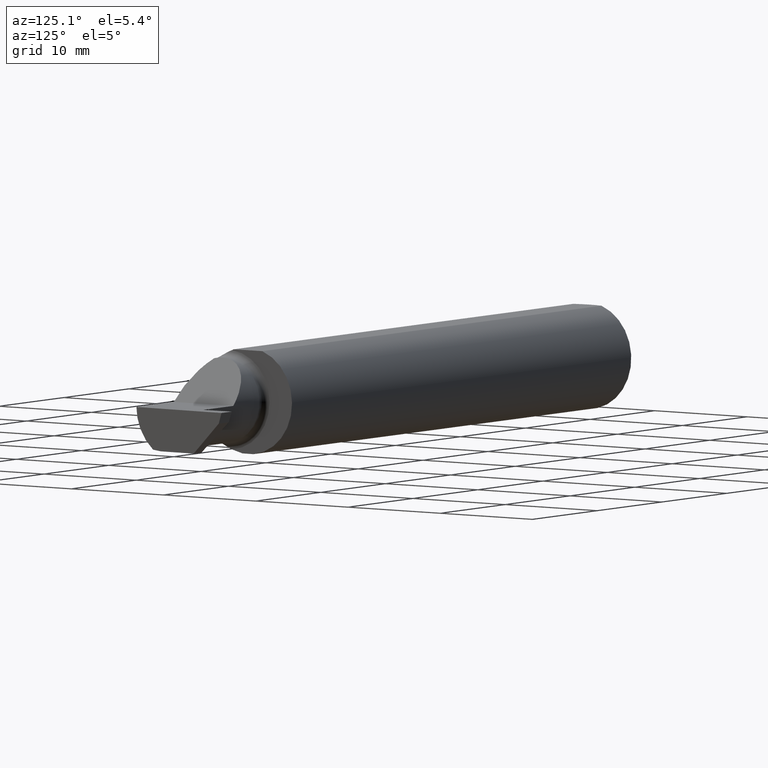
[diagram: clean part render]
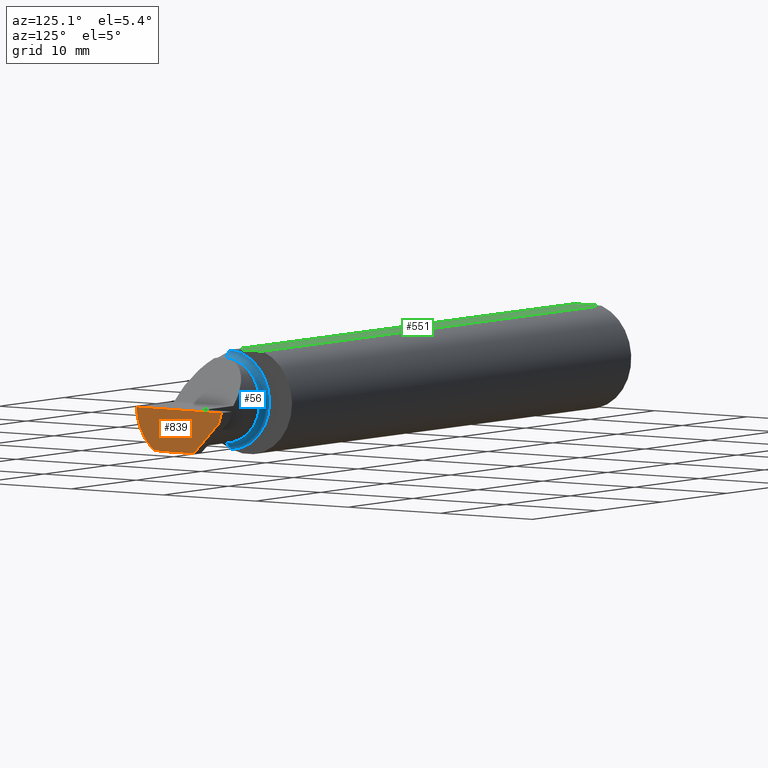
[diagram: same view with three faces highlighted in distinct colors, each labeled with its STEP entity id]
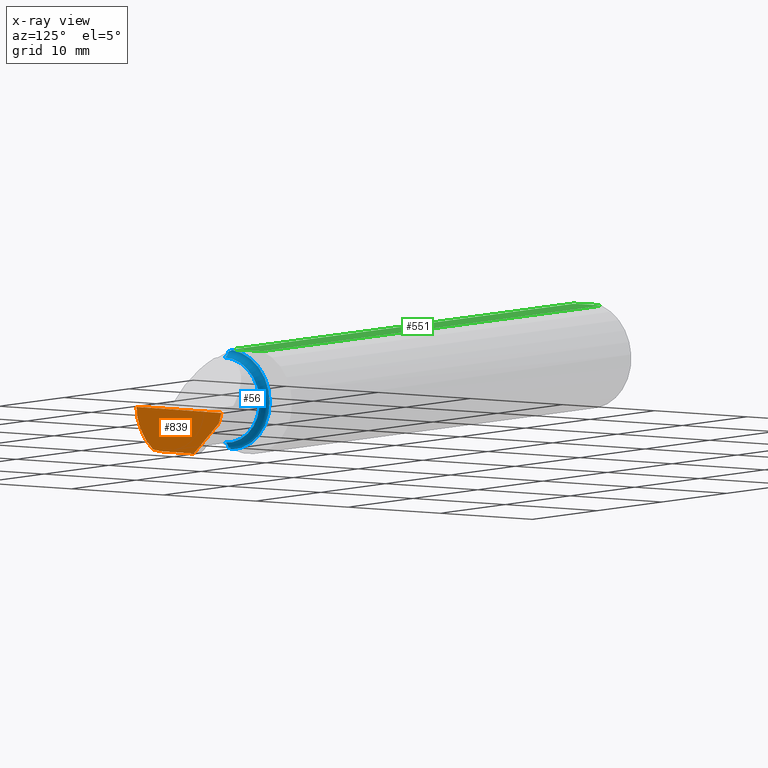
[diagram: x-ray of the same camera — body ghosted, the three highlighted faces saturated]
A machine part, auxiliary view with three faces highlighted in distinct colors.
The next image is the same camera in x-ray (body ghosted, the three faces saturated) — at least one of them is partly hidden behind the body in this view.
Their STEP definitions:

[orange] entity #839 — the highlighted planar face has unit normal (-0.999, 0.0349, 0.0262).
#11 =( BOUNDED_CURVE ( )  B_SPLINE_CURVE ( 3, ( #1026, #68, #52, #303 ),
 .UNSPECIFIED., .F., .F. ) 
 B_SPLINE_CURVE_WITH_KNOTS ( ( 4, 4 ),
 ( 0.6990500090944880007, 0.9270880441439324215 ),
 .UNSPECIFIED. ) 
 CURVE ( )  GEOMETRIC_REPRESENTATION_ITEM ( )  RATIONAL_B_SPLINE_CURVE ( ( 1.000000000000000000, 0.9956712472009929815, 0.9956712472009929815, 1.000000000000000000 ) ) 
 REPRESENTATION_ITEM ( '' )  );
#14 = VERTEX_POINT ( 'NONE', #480 ) ;
#30 = LINE ( 'NONE', #441, #1024 ) ;
#32 = CARTESIAN_POINT ( 'NONE',  ( 2.500000000000000000, 0.1846500000000000363, 0.000000000000000000 ) ) ;
#35 = ORIENTED_EDGE ( 'NONE', *, *, #262, .T. ) ;
#47 =( BOUNDED_CURVE ( )  B_SPLINE_CURVE ( 3, ( #413, #567, #965, #489 ),
 .UNSPECIFIED., .F., .F. ) 
 B_SPLINE_CURVE_WITH_KNOTS ( ( 4, 4 ),
 ( 6.032366188922103412, 6.926893589830550368 ),
 .UNSPECIFIED. ) 
 CURVE ( )  GEOMETRIC_REPRESENTATION_ITEM ( )  RATIONAL_B_SPLINE_CURVE ( ( 1.000000000000000000, 0.9344226172588803170, 0.9344226172588803170, 1.000000000000000000 ) ) 
 REPRESENTATION_ITEM ( '' )  );
#52 = CARTESIAN_POINT ( 'NONE',  ( 2.486311922989707490, -0.09477667630339421667, -0.1499999999999999944 ) ) ;
#60 = DIRECTION ( 'NONE',  ( -0.04317993108638582683, -0.7064472710512009757, -0.7064472710511987552 ) ) ;
#68 = CARTESIAN_POINT ( 'NONE',  ( 2.485949549028435790, -0.1061291577212409298, -0.1486999626928446061 ) ) ;
#139 = PLANE ( 'NONE',  #390 ) ;
#149 = FACE_OUTER_BOUND ( 'NONE', #314, .T. ) ;
#208 = VECTOR ( 'NONE', #454, 39.37007874015748143 ) ;
#216 = LINE ( 'NONE', #464, #1025 ) ;
#221 = ORIENTED_EDGE ( 'NONE', *, *, #370, .F. ) ;
#227 = ORIENTED_EDGE ( 'NONE', *, *, #657, .F. ) ;
#229 = CARTESIAN_POINT ( 'NONE',  ( 2.498573163503173156, 0.1723030515431495657, -0.03799999999999999212 ) ) ;
#232 = DIRECTION ( 'NONE',  ( -0.03489949670249477970, -0.9993908270190959842, 0.000000000000000000 ) ) ;
#261 = EDGE_CURVE ( 'NONE', #522, #975, #216, .T. ) ;
#262 = EDGE_CURVE ( 'NONE', #14, #951, #11, .T. ) ;
#303 = CARTESIAN_POINT ( 'NONE',  ( 2.486710951318955587, -0.08334999999999995191, -0.1499999999999999944 ) ) ;
#304 = ORIENTED_EDGE ( 'NONE', *, *, #704, .F. ) ;
#314 = EDGE_LOOP ( 'NONE', ( #35, #304, #221, #227, #652, #575 ) ) ;
#354 = VECTOR ( 'NONE', #60, 39.37007874015748143 ) ;
#362 = VERTEX_POINT ( 'NONE', #229 ) ;
#370 = EDGE_CURVE ( 'NONE', #362, #455, #781, .T. ) ;
#390 = AXIS2_PLACEMENT_3D ( 'NONE', #948, #935, #232 ) ;
#397 = EDGE_CURVE ( 'NONE', #14, #975, #47, .T. ) ;
#413 = CARTESIAN_POINT ( 'NONE',  ( 2.485628535317038867, -0.1172600179964007061, -0.1461167706989303094 ) ) ;
#441 = CARTESIAN_POINT ( 'NONE',  ( 2.493549313964080305, 0.1124750847462631514, -0.1499999999999999944 ) ) ;
#454 = DIRECTION ( 'NONE',  ( -0.03568783471266506746, -0.3088201463263676727, -0.9504506802967118695 ) ) ;
#455 = VERTEX_POINT ( 'NONE', #654 ) ;
#464 = CARTESIAN_POINT ( 'NONE',  ( 2.500000000000000000, 0.1846500000000000363, 0.000000000000000000 ) ) ;
#480 = CARTESIAN_POINT ( 'NONE',  ( 2.485628535317038867, -0.1172600179964007061, -0.1461167706989303094 ) ) ;
#489 = CARTESIAN_POINT ( 'NONE',  ( 2.487009473749072441, -0.1873499999999999055, 0.000000000000000000 ) ) ;
#522 = VERTEX_POINT ( 'NONE', #32 ) ;
#567 = CARTESIAN_POINT ( 'NONE',  ( 2.485002117657001186, -0.1623470442677541481, -0.1099340280425338545 ) ) ;
#569 = CARTESIAN_POINT ( 'NONE',  ( 2.487009473749072441, -0.1873499999999999055, 0.000000000000000000 ) ) ;
#575 = ORIENTED_EDGE ( 'NONE', *, *, #397, .F. ) ;
#652 = ORIENTED_EDGE ( 'NONE', *, *, #261, .T. ) ;
#654 = CARTESIAN_POINT ( 'NONE',  ( 2.491727426418679059, 0.06030305154314919563, -0.1499999999999999944 ) ) ;
#657 = EDGE_CURVE ( 'NONE', #522, #362, #833, .T. ) ;
#704 = EDGE_CURVE ( 'NONE', #455, #951, #30, .T. ) ;
#758 = CARTESIAN_POINT ( 'NONE',  ( 2.499872637845352408, 0.1835478877661963770, -0.003391952678096913417 ) ) ;
#781 = LINE ( 'NONE', #871, #354 ) ;
#833 = LINE ( 'NONE', #758, #208 ) ;
#839 = ADVANCED_FACE ( 'NONE', ( #149 ), #139, .F. ) ;
#871 = CARTESIAN_POINT ( 'NONE',  ( 2.498389373204160435, 0.1692961418071499968, -0.04100690973599954714 ) ) ;
#878 = CARTESIAN_POINT ( 'NONE',  ( 2.486710951318955587, -0.08334999999999995191, -0.1499999999999999944 ) ) ;
#922 = DIRECTION ( 'NONE',  ( -0.03489949670249477970, -0.9993908270190959842, 0.000000000000000000 ) ) ;
#935 = DIRECTION ( 'NONE',  ( -0.9990483607430193924, 0.03488753751660920999, 0.02617694830787320806 ) ) ;
#936 = DIRECTION ( 'NONE',  ( -0.03489949670249478664, -0.9993908270190959842, 0.000000000000000000 ) ) ;
#948 = CARTESIAN_POINT ( 'NONE',  ( 2.500000000000000000, 0.1846500000000000363, 0.000000000000000000 ) ) ;
#951 = VERTEX_POINT ( 'NONE', #878 ) ;
#965 = CARTESIAN_POINT ( 'NONE',  ( 2.485494735025390867, -0.1873500000000000443, -0.05781030015605120170 ) ) ;
#975 = VERTEX_POINT ( 'NONE', #569 ) ;
#1024 = VECTOR ( 'NONE', #922, 39.37007874015748143 ) ;
#1025 = VECTOR ( 'NONE', #936, 39.37007874015748854 ) ;
#1026 = CARTESIAN_POINT ( 'NONE',  ( 2.485628535317038867, -0.1172600179964007061, -0.1461167706989303094 ) ) ;

[blue] entity #56 — the highlighted toroidal blend (fillet) surface has major radius 4.445 mm and minor (blend) radius 0.635 mm.
#50 = VERTEX_POINT ( 'NONE', #1027 ) ;
#53 = EDGE_CURVE ( 'NONE', #879, #626, #832, .T. ) ;
#54 = ORIENTED_EDGE ( 'NONE', *, *, #53, .T. ) ;
#56 = ADVANCED_FACE ( 'NONE', ( #69 ), #376, .F. ) ;
#69 = FACE_OUTER_BOUND ( 'NONE', #799, .T. ) ;
#84 = AXIS2_PLACEMENT_3D ( 'NONE', #642, #876, #549 ) ;
#126 = CARTESIAN_POINT ( 'NONE',  ( 2.076062863587533780, -0.08334999999998812803, 0.1677879614275171183 ) ) ;
#143 = CARTESIAN_POINT ( 'NONE',  ( 2.075000000000000178, -0.06851976604679065053, 0.1743704796142198643 ) ) ;
#146 = B_SPLINE_CURVE_WITH_KNOTS ( 'NONE', 3,
 ( #369, #677, #986, #344 ),
 .UNSPECIFIED., .F., .F.,
 ( 4, 4 ),
 ( 0.001278539404338873992, 0.001694873732696220705 ),
 .UNSPECIFIED. ) ;
#167 = DIRECTION ( 'NONE',  ( 0.000000000000000000, 0.000000000000000000, 1.000000000000000000 ) ) ;
#207 = VERTEX_POINT ( 'NONE', #825 ) ;
#243 = CARTESIAN_POINT ( 'NONE',  ( 2.075000000000000178, -0.08334999999999996578, 0.000000000000000000 ) ) ;
#282 = ORIENTED_EDGE ( 'NONE', *, *, #749, .T. ) ;
#302 = CIRCLE ( 'NONE', #666, 0.1499999999999999944 ) ;
#333 = AXIS2_PLACEMENT_3D ( 'NONE', #243, #566, #167 ) ;
#344 = CARTESIAN_POINT ( 'NONE',  ( 2.075000000000000178, -0.06851976604679065053, -0.1743704796142198643 ) ) ;
#366 = EDGE_CURVE ( 'NONE', #817, #416, #580, .T. ) ;
#369 = CARTESIAN_POINT ( 'NONE',  ( 2.076062863587535556, -0.08334999999999989639, -0.1677879614275112619 ) ) ;
#376 = TOROIDAL_SURFACE ( 'NONE', #84, 0.1749999999999999889, 0.02499999999999993894 ) ;
#378 = CARTESIAN_POINT ( 'NONE',  ( 2.075000000000000178, -0.06851976604679065053, 0.1743704796142198643 ) ) ;
#416 = VERTEX_POINT ( 'NONE', #572 ) ;
#475 = CARTESIAN_POINT ( 'NONE',  ( 2.075344683557281300, -0.07855153123406181936, 0.1701716388274757685 ) ) ;
#494 = CIRCLE ( 'NONE', #765, 0.02499999999999993894 ) ;
#538 = ORIENTED_EDGE ( 'NONE', *, *, #769, .T. ) ;
#546 = DIRECTION ( 'NONE',  ( -1.000000000000000000, -0.000000000000000000, -0.000000000000000000 ) ) ;
#548 = CARTESIAN_POINT ( 'NONE',  ( 2.100000000000000089, -0.08334999999999992415, -0.1749999999999999889 ) ) ;
#549 = DIRECTION ( 'NONE',  ( 0.000000000000000000, 0.000000000000000000, 1.000000000000000000 ) ) ;
#550 = CARTESIAN_POINT ( 'NONE',  ( 2.100000000000000089, -0.08334999999999995191, 0.1749999999999999889 ) ) ;
#566 = DIRECTION ( 'NONE',  ( -1.000000000000000000, -0.000000000000000000, -0.000000000000000000 ) ) ;
#572 = CARTESIAN_POINT ( 'NONE',  ( 2.100000000000000089, -0.08334999999999995191, -0.1499999999999999944 ) ) ;
#578 = EDGE_CURVE ( 'NONE', #879, #50, #860, .T. ) ;
#580 = CIRCLE ( 'NONE', #955, 0.02499999999999993894 ) ;
#592 = EDGE_CURVE ( 'NONE', #817, #50, #146, .T. ) ;
#612 = ORIENTED_EDGE ( 'NONE', *, *, #592, .T. ) ;
#621 = CARTESIAN_POINT ( 'NONE',  ( 2.076062863587533780, -0.08334999999998812803, 0.1677879614275171183 ) ) ;
#626 = VERTEX_POINT ( 'NONE', #126 ) ;
#637 = CARTESIAN_POINT ( 'NONE',  ( 2.074999999999999734, -0.07360907839729495528, 0.1723706084642000758 ) ) ;
#641 = DIRECTION ( 'NONE',  ( -0.000000000000000000, 1.000000000000000000, 1.224646799147353207E-16 ) ) ;
#642 = CARTESIAN_POINT ( 'NONE',  ( 2.100000000000000089, -0.08334999999999995191, 0.000000000000000000 ) ) ;
#666 = AXIS2_PLACEMENT_3D ( 'NONE', #1017, #546, #1022 ) ;
#677 = CARTESIAN_POINT ( 'NONE',  ( 2.075346246588685162, -0.07856197451716399882, -0.1701664510438046229 ) ) ;
#749 = EDGE_CURVE ( 'NONE', #626, #207, #494, .T. ) ;
#765 = AXIS2_PLACEMENT_3D ( 'NONE', #550, #932, #791 ) ;
#769 = EDGE_CURVE ( 'NONE', #207, #416, #302, .T. ) ;
#791 = DIRECTION ( 'NONE',  ( 0.000000000000000000, 0.000000000000000000, -1.000000000000000000 ) ) ;
#799 = EDGE_LOOP ( 'NONE', ( #1032, #612, #885, #54, #282, #538 ) ) ;
#817 = VERTEX_POINT ( 'NONE', #869 ) ;
#825 = CARTESIAN_POINT ( 'NONE',  ( 2.100000000000000089, -0.08334999999999996578, 0.1499999999999999944 ) ) ;
#832 = B_SPLINE_CURVE_WITH_KNOTS ( 'NONE', 3,
 ( #378, #637, #475, #621 ),
 .UNSPECIFIED., .F., .F.,
 ( 4, 4 ),
 ( 4.423516731080786679E-05, 0.0004561457252213465489 ),
 .UNSPECIFIED. ) ;
#860 = CIRCLE ( 'NONE', #333, 0.1749999999999999889 ) ;
#869 = CARTESIAN_POINT ( 'NONE',  ( 2.076062863587535556, -0.08334999999999989639, -0.1677879614275112619 ) ) ;
#876 = DIRECTION ( 'NONE',  ( -1.000000000000000000, -0.000000000000000000, -0.000000000000000000 ) ) ;
#879 = VERTEX_POINT ( 'NONE', #143 ) ;
#885 = ORIENTED_EDGE ( 'NONE', *, *, #578, .F. ) ;
#932 = DIRECTION ( 'NONE',  ( 0.000000000000000000, -1.000000000000000000, 0.000000000000000000 ) ) ;
#950 = DIRECTION ( 'NONE',  ( 0.000000000000000000, 0.000000000000000000, 1.000000000000000000 ) ) ;
#955 = AXIS2_PLACEMENT_3D ( 'NONE', #548, #641, #950 ) ;
#986 = CARTESIAN_POINT ( 'NONE',  ( 2.075000000000000178, -0.07359296612170562746, -0.1723769398647691520 ) ) ;
#1017 = CARTESIAN_POINT ( 'NONE',  ( 2.100000000000000089, -0.08334999999999996578, 0.000000000000000000 ) ) ;
#1022 = DIRECTION ( 'NONE',  ( 0.000000000000000000, 0.000000000000000000, 1.000000000000000000 ) ) ;
#1027 = CARTESIAN_POINT ( 'NONE',  ( 2.075000000000000178, -0.06851976604679065053, -0.1743704796142198643 ) ) ;
#1032 = ORIENTED_EDGE ( 'NONE', *, *, #366, .F. ) ;

[green] entity #551 — the highlighted planar face has unit normal (0, -0, 1).
#8 = CARTESIAN_POINT ( 'NONE',  ( 2.075000000000000178, -0.1873500000000000165, 0.1773499999999999799 ) ) ;
#22 = DIRECTION ( 'NONE',  ( 0.000000000000000000, -0.000000000000000000, 1.000000000000000000 ) ) ;
#48 = LINE ( 'NONE', #628, #812 ) ;
#58 = VERTEX_POINT ( 'NONE', #235 ) ;
#59 = LINE ( 'NONE', #383, #728 ) ;
#66 = AXIS2_PLACEMENT_3D ( 'NONE', #754, #22, #828 ) ;
#89 = LINE ( 'NONE', #8, #974 ) ;
#99 = PLANE ( 'NONE',  #66 ) ;
#106 = CARTESIAN_POINT ( 'NONE',  ( 0.004999999999999833571, -0.01026662907944655458, 0.1773499999999999521 ) ) ;
#123 = CARTESIAN_POINT ( 'NONE',  ( 0.01186375298701897348, -0.05066077215909271098, 0.1773499999999999799 ) ) ;
#176 = EDGE_CURVE ( 'NONE', #492, #590, #581, .T. ) ;
#190 = CARTESIAN_POINT ( 'NONE',  ( 0.004999999999999835305, 2.941982542510190671E-17, 0.1773499999999999799 ) ) ;
#206 = CARTESIAN_POINT ( 'NONE',  ( 0.009318557230853204490, -0.04061090184993776386, 0.1773499999999999799 ) ) ;
#225 = DIRECTION ( 'NONE',  ( -1.000000000000000000, -0.000000000000000000, -0.000000000000000000 ) ) ;
#235 = CARTESIAN_POINT ( 'NONE',  ( 0.01499999999999756042, 0.06039039658754215278, 0.1773499999999999799 ) ) ;
#272 = ORIENTED_EDGE ( 'NONE', *, *, #474, .T. ) ;
#313 = DIRECTION ( 'NONE',  ( 1.000000000000000000, 0.000000000000000000, 0.000000000000000000 ) ) ;
#361 = EDGE_CURVE ( 'NONE', #570, #58, #48, .T. ) ;
#365 = CARTESIAN_POINT ( 'NONE',  ( 0.004999999999999835305, 2.941982542510190671E-17, 0.1773499999999999799 ) ) ;
#383 = CARTESIAN_POINT ( 'NONE',  ( 0.000000000000000000, -0.06039039658753697637, 0.1773499999999999799 ) ) ;
#411 = ORIENTED_EDGE ( 'NONE', *, *, #176, .T. ) ;
#462 = ORIENTED_EDGE ( 'NONE', *, *, #923, .T. ) ;
#463 = CARTESIAN_POINT ( 'NONE',  ( 0.009346310357820472939, 0.04072930668827419443, 0.1773500000000000354 ) ) ;
#474 = EDGE_CURVE ( 'NONE', #792, #570, #89, .T. ) ;
#492 = VERTEX_POINT ( 'NONE', #190 ) ;
#519 = DIRECTION ( 'NONE',  ( -0.000000000000000000, 1.000000000000000000, 0.000000000000000000 ) ) ;
#535 = CARTESIAN_POINT ( 'NONE',  ( 0.01499999999999999944, -0.06039039658753697637, 0.1773499999999999799 ) ) ;
#551 = ADVANCED_FACE ( 'NONE', ( #994 ), #99, .T. ) ;
#570 = VERTEX_POINT ( 'NONE', #818 ) ;
#581 = B_SPLINE_CURVE_WITH_KNOTS ( 'NONE', 3,
 ( #365, #106, #685, #206, #123, #755 ),
 .UNSPECIFIED., .F., .F.,
 ( 4, 2, 4 ),
 ( 0.005750933109916887831, 0.006521788775031543001, 0.007292644440146199038 ),
 .UNSPECIFIED. ) ;
#590 = VERTEX_POINT ( 'NONE', #535 ) ;
#614 = B_SPLINE_CURVE_WITH_KNOTS ( 'NONE', 3,
 ( #859, #718, #463, #785, #708, #939 ),
 .UNSPECIFIED., .F., .F.,
 ( 4, 2, 4 ),
 ( 0.004207325536406422359, 0.004979129323161655095, 0.005750933109916887831 ),
 .UNSPECIFIED. ) ;
#628 = CARTESIAN_POINT ( 'NONE',  ( 0.000000000000000000, 0.06039039658753697637, 0.1773499999999999799 ) ) ;
#663 = EDGE_LOOP ( 'NONE', ( #462, #272, #742, #980, #411 ) ) ;
#685 = CARTESIAN_POINT ( 'NONE',  ( 0.005896899252109314912, -0.02043863390046160924, 0.1773500000000000354 ) ) ;
#708 = CARTESIAN_POINT ( 'NONE',  ( 0.004999999999999839642, 0.01027925662263861305, 0.1773499999999999799 ) ) ;
#718 = CARTESIAN_POINT ( 'NONE',  ( 0.01185291896084217714, 0.05062716160312498437, 0.1773499999999999521 ) ) ;
#728 = VECTOR ( 'NONE', #313, 39.37007874015748143 ) ;
#742 = ORIENTED_EDGE ( 'NONE', *, *, #361, .T. ) ;
#754 = CARTESIAN_POINT ( 'NONE',  ( 2.500000000000000000, -0.1873500000000000165, 0.1773499999999999799 ) ) ;
#755 = CARTESIAN_POINT ( 'NONE',  ( 0.01499999999999999944, -0.06039039658753697637, 0.1773499999999999799 ) ) ;
#785 = CARTESIAN_POINT ( 'NONE',  ( 0.005916828623699125177, 0.02060071390057613763, 0.1773499999999999799 ) ) ;
#792 = VERTEX_POINT ( 'NONE', #874 ) ;
#812 = VECTOR ( 'NONE', #225, 39.37007874015748143 ) ;
#818 = CARTESIAN_POINT ( 'NONE',  ( 2.075000000000000178, 0.06039039658754216666, 0.1773499999999999799 ) ) ;
#828 = DIRECTION ( 'NONE',  ( 1.000000000000000000, 0.000000000000000000, -0.000000000000000000 ) ) ;
#859 = CARTESIAN_POINT ( 'NONE',  ( 0.01499999999999756042, 0.06039039658754215278, 0.1773499999999999799 ) ) ;
#874 = CARTESIAN_POINT ( 'NONE',  ( 2.075000000000000178, -0.06039039658753699025, 0.1773499999999999799 ) ) ;
#916 = EDGE_CURVE ( 'NONE', #58, #492, #614, .T. ) ;
#923 = EDGE_CURVE ( 'NONE', #590, #792, #59, .T. ) ;
#939 = CARTESIAN_POINT ( 'NONE',  ( 0.004999999999999835305, 2.941982542510190671E-17, 0.1773499999999999799 ) ) ;
#974 = VECTOR ( 'NONE', #519, 39.37007874015748143 ) ;
#980 = ORIENTED_EDGE ( 'NONE', *, *, #916, .T. ) ;
#994 = FACE_OUTER_BOUND ( 'NONE', #663, .T. ) ;